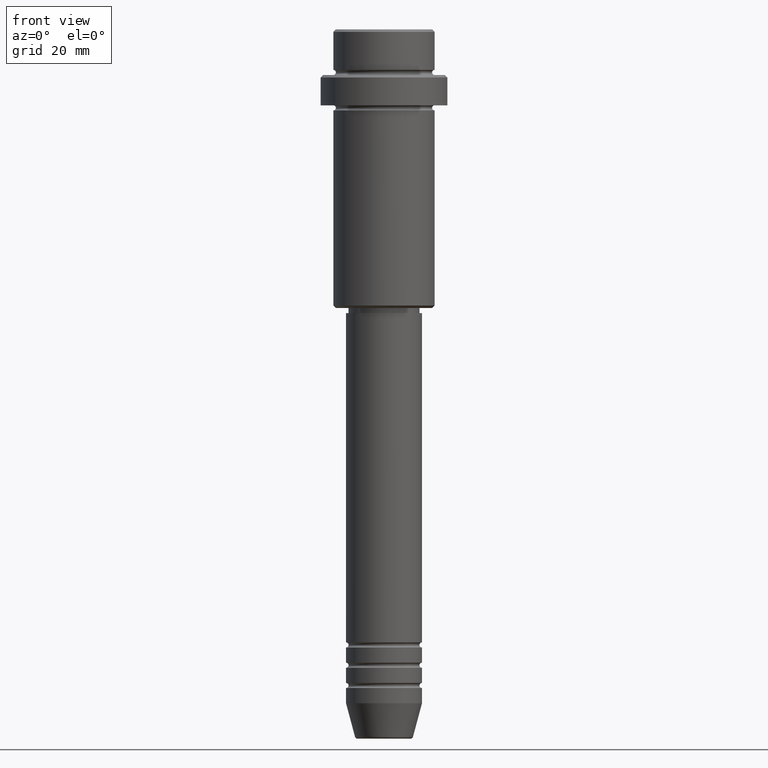
[diagram: clean part render]
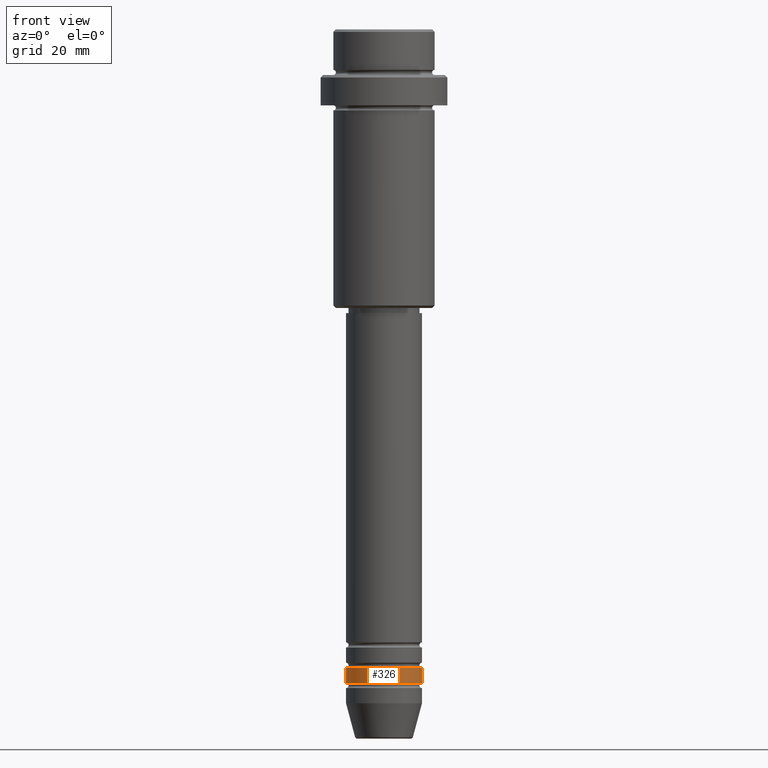
[diagram: same view with one face highlighted and labeled with its STEP entity id]
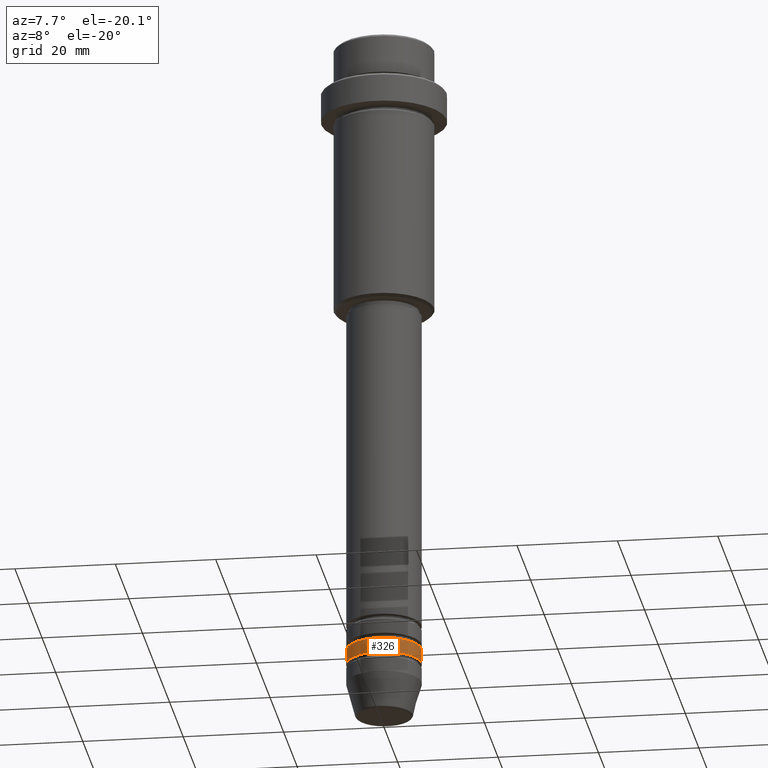
[diagram: same view with one face highlighted and labeled with its STEP entity id]
A machine part, front view. The second image highlights one B-rep face of the part: STEP entity #326.
A second angle (auxiliary view) of the same face is appended — the face is thin or edge-on in the first view.
In plain terms, the highlighted cylindrical surface (partial cylindrical patch) has radius 7.5 mm, axis along (-0, -0, 1).
Its self-contained STEP definition (entity closure, byte-faithful):
#36 = AXIS2_PLACEMENT_3D ( 'NONE', #577, #486, #44 ) ;
#44 = DIRECTION ( 'NONE',  ( 1.000000000000000000, 0.000000000000000000, 0.000000000000000000 ) ) ;
#63 = CYLINDRICAL_SURFACE ( 'NONE', #1400, 7.500000000000000000 ) ;
#125 = ORIENTED_EDGE ( 'NONE', *, *, #848, .T. ) ;
#133 = DIRECTION ( 'NONE',  ( -0.000000000000000000, -0.000000000000000000, 1.000000000000000000 ) ) ;
#150 = LINE ( 'NONE', #352, #821 ) ;
#220 = VERTEX_POINT ( 'NONE', #484 ) ;
#318 = CARTESIAN_POINT ( 'NONE',  ( 0.000000000000000000, 0.000000000000000000, -128.9999999999998863 ) ) ;
#326 = ADVANCED_FACE ( 'NONE', ( #1274 ), #63, .T. ) ;
#352 = CARTESIAN_POINT ( 'NONE',  ( 7.500000000000000000, 0.000000000000000000, 0.000000000000000000 ) ) ;
#405 = ORIENTED_EDGE ( 'NONE', *, *, #1084, .F. ) ;
#414 = EDGE_LOOP ( 'NONE', ( #655, #125, #1088, #405 ) ) ;
#484 = CARTESIAN_POINT ( 'NONE',  ( -7.500000000000000000, 9.184850993605147944E-16, -128.9999999999998863 ) ) ;
#486 = DIRECTION ( 'NONE',  ( -0.000000000000000000, -0.000000000000000000, 1.000000000000000000 ) ) ;
#572 = CIRCLE ( 'NONE', #979, 7.500000000000000000 ) ;
#577 = CARTESIAN_POINT ( 'NONE',  ( 0.000000000000000000, 0.000000000000000000, -125.9999999999998863 ) ) ;
#619 = EDGE_CURVE ( 'NONE', #934, #1292, #150, .T. ) ;
#640 = VERTEX_POINT ( 'NONE', #794 ) ;
#650 = CARTESIAN_POINT ( 'NONE',  ( 0.000000000000000000, 0.000000000000000000, 0.000000000000000000 ) ) ;
#655 = ORIENTED_EDGE ( 'NONE', *, *, #1266, .F. ) ;
#668 = VECTOR ( 'NONE', #829, 1000.000000000000000 ) ;
#794 = CARTESIAN_POINT ( 'NONE',  ( -7.500000000000000000, 9.184850993605147944E-16, -125.9999999999998863 ) ) ;
#821 = VECTOR ( 'NONE', #133, 1000.000000000000000 ) ;
#829 = DIRECTION ( 'NONE',  ( -0.000000000000000000, -0.000000000000000000, 1.000000000000000000 ) ) ;
#838 = DIRECTION ( 'NONE',  ( 1.000000000000000000, 0.000000000000000000, 0.000000000000000000 ) ) ;
#848 = EDGE_CURVE ( 'NONE', #220, #934, #572, .T. ) ;
#934 = VERTEX_POINT ( 'NONE', #1092 ) ;
#935 = LINE ( 'NONE', #1369, #668 ) ;
#941 = CARTESIAN_POINT ( 'NONE',  ( 7.500000000000000000, 0.000000000000000000, -125.9999999999998863 ) ) ;
#979 = AXIS2_PLACEMENT_3D ( 'NONE', #318, #1404, #1195 ) ;
#1084 = EDGE_CURVE ( 'NONE', #640, #1292, #1097, .T. ) ;
#1088 = ORIENTED_EDGE ( 'NONE', *, *, #619, .T. ) ;
#1092 = CARTESIAN_POINT ( 'NONE',  ( 7.500000000000000000, 0.000000000000000000, -128.9999999999998863 ) ) ;
#1097 = CIRCLE ( 'NONE', #36, 7.500000000000000000 ) ;
#1195 = DIRECTION ( 'NONE',  ( 1.000000000000000000, 0.000000000000000000, 0.000000000000000000 ) ) ;
#1266 = EDGE_CURVE ( 'NONE', #220, #640, #935, .T. ) ;
#1274 = FACE_OUTER_BOUND ( 'NONE', #414, .T. ) ;
#1292 = VERTEX_POINT ( 'NONE', #941 ) ;
#1369 = CARTESIAN_POINT ( 'NONE',  ( -7.500000000000000000, 9.184850993605147944E-16, 0.000000000000000000 ) ) ;
#1400 = AXIS2_PLACEMENT_3D ( 'NONE', #650, #1403, #838 ) ;
#1403 = DIRECTION ( 'NONE',  ( -0.000000000000000000, -0.000000000000000000, 1.000000000000000000 ) ) ;
#1404 = DIRECTION ( 'NONE',  ( -0.000000000000000000, -0.000000000000000000, 1.000000000000000000 ) ) ;